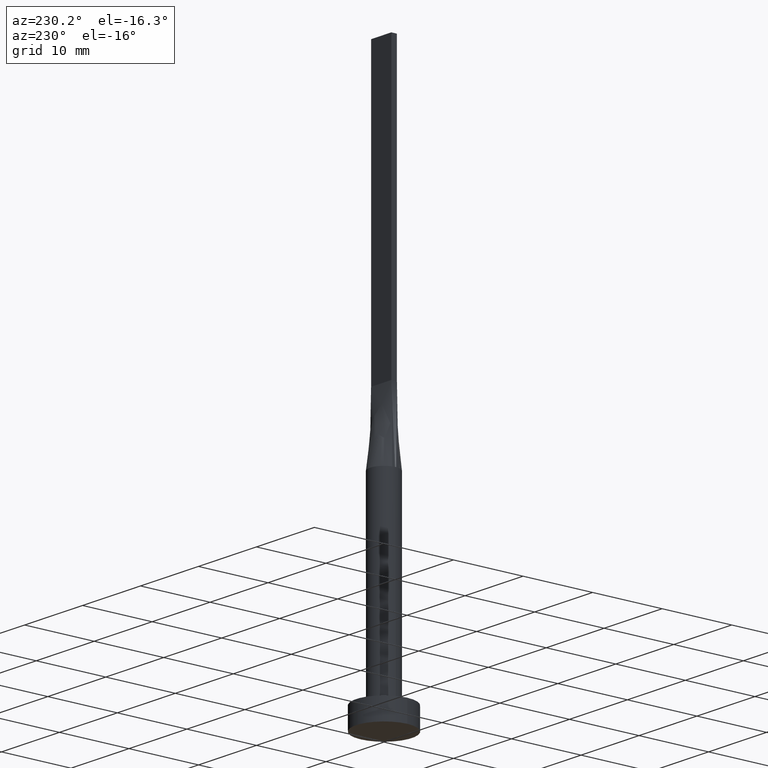
[diagram: clean part render]
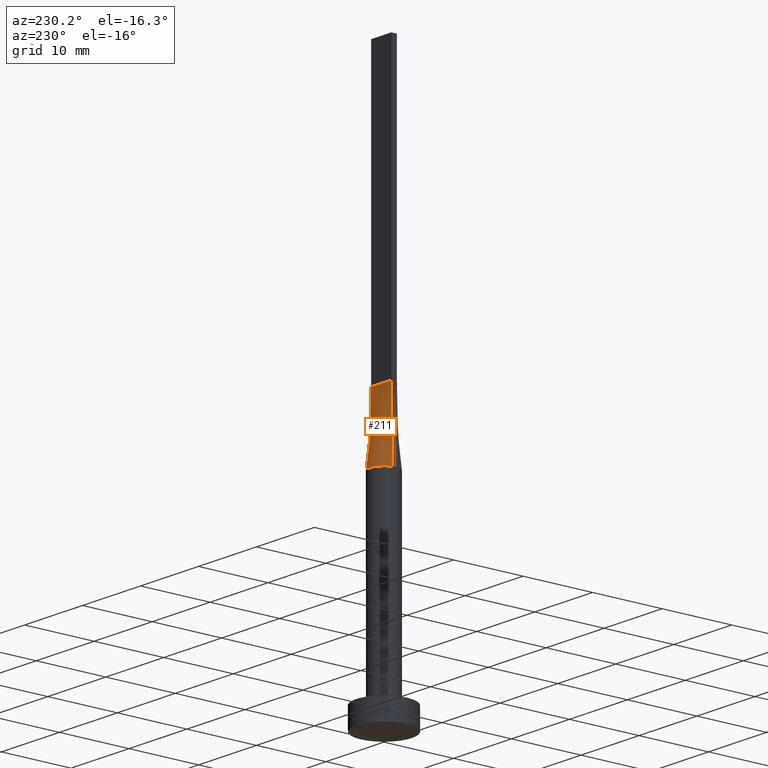
[diagram: same view with one face highlighted and labeled with its STEP entity id]
A machine part, auxiliary view. The second image highlights one B-rep face of the part: STEP entity #211.
In plain terms, the highlighted face is a freeform B-spline surface patch.
Its self-contained STEP definition (entity closure, byte-faithful):
#2 = CARTESIAN_POINT ( 'NONE',  ( -1.949896596863728293, 0.4456908869437610776, 30.00000000000000000 ) ) ;
#19 = VECTOR ( 'NONE', #549, 1000.000000000000114 ) ;
#20 = CARTESIAN_POINT ( 'NONE',  ( 1.002818635501954603, 1.749193953526918088, 30.00000000000000000 ) ) ;
#25 = EDGE_LOOP ( 'NONE', ( #476, #93, #238, #541 ) ) ;
#26 = CARTESIAN_POINT ( 'NONE',  ( 1.913513237607142647, 0.6040411209768705714, 30.00000000000000000 ) ) ;
#35 = CARTESIAN_POINT ( 'NONE',  ( 1.669156890509896352, 1.119033439449084177, 29.99999999999999645 ) ) ;
#45 = CARTESIAN_POINT ( 'NONE',  ( -1.854458107241758746, 0.7741483657718513101, 30.00000000000000000 ) ) ;
#57 = LINE ( 'NONE', #199, #165 ) ;
#62 = CARTESIAN_POINT ( 'NONE',  ( -1.542259513637947999, 1.293837904363075442, 30.00000000000000355 ) ) ;
#64 = CARTESIAN_POINT ( 'NONE',  ( -1.749999999999999778, 0.4000000000000003553, 40.00000000000000000 ) ) ;
#72 = DIRECTION ( 'NONE',  ( 0.01996751149463110026, -0.004564002627344216668, 0.9997902121768992290 ) ) ;
#74 = CARTESIAN_POINT ( 'NONE',  ( -0.5833333333333340365, 0.4000000000000004108, 39.99999999999999289 ) ) ;
#83 = CARTESIAN_POINT ( 'NONE',  ( 1.002818635501954603, 1.749193953526918088, 30.00000000000000000 ) ) ;
#92 = CARTESIAN_POINT ( 'NONE',  ( -1.949896596863728293, 0.4456908869437610776, 30.00000000000000000 ) ) ;
#93 = ORIENTED_EDGE ( 'NONE', *, *, #167, .T. ) ;
#105 = CARTESIAN_POINT ( 'NONE',  ( -0.7291666666666672958, 0.4000000000000004108, 39.99999999999999289 ) ) ;
#113 = CARTESIAN_POINT ( 'NONE',  ( -1.002818635501954381, 1.749193953526918532, 30.00000000000000000 ) ) ;
#116 = CARTESIAN_POINT ( 'NONE',  ( 0.5307032259479425029, 1.945168061822314165, 30.00000000000000000 ) ) ;
#119 = CARTESIAN_POINT ( 'NONE',  ( -0.5307032259479420588, 1.945168061822314609, 30.00000000000000000 ) ) ;
#129 = CARTESIAN_POINT ( 'NONE',  ( 1.209404336647714073, 1.609323485403446830, 30.00000000000001066 ) ) ;
#156 = CARTESIAN_POINT ( 'NONE',  ( 1.949877516600953875, 0.4456865912299994847, 30.00000000000000000 ) ) ;
#162 = CARTESIAN_POINT ( 'NONE',  ( 1.166666666666665630, 0.4000000000000003553, 39.99999999999999289 ) ) ;
#165 = VECTOR ( 'NONE', #368, 1000.000000000000000 ) ;
#166 = CARTESIAN_POINT ( 'NONE',  ( 1.542259513637948443, 1.293837904363074998, 30.00000000000000711 ) ) ;
#167 = EDGE_CURVE ( 'NONE', #423, #525, #463, .T. ) ;
#169 = CARTESIAN_POINT ( 'NONE',  ( -0.2657394870669756437, 1.999999999999999556, 30.00000000000000000 ) ) ;
#173 = CARTESIAN_POINT ( 'NONE',  ( -1.002818635501954381, 1.749193953526918532, 30.00000000000000000 ) ) ;
#177 = CARTESIAN_POINT ( 'NONE',  ( 1.949877516600953875, 0.4456865912299994847, 30.00000000000000000 ) ) ;
#199 = CARTESIAN_POINT ( 'NONE',  ( -1.749999999999999778, 0.4000000000000003553, 40.00000000000000000 ) ) ;
#203 = CARTESIAN_POINT ( 'NONE',  ( 1.209404336647714073, 1.609323485403446830, 30.00000000000001066 ) ) ;
#207 = CARTESIAN_POINT ( 'NONE',  ( -0.1458333333333341753, 0.4000000000000004108, 39.99999999999999289 ) ) ;
#211 = ADVANCED_FACE ( 'NONE', ( #468 ), #300, .T. ) ;
#216 = CARTESIAN_POINT ( 'NONE',  ( -1.542259513637947999, 1.293837904363075442, 30.00000000000000355 ) ) ;
#224 = CARTESIAN_POINT ( 'NONE',  ( -1.458333333333333703, 0.4000000000000004108, 39.99999999999999289 ) ) ;
#230 = B_SPLINE_CURVE_WITH_KNOTS ( 'NONE', 3,
 ( #177, #439, #573, #35, #347, #129, #83, #383, #570, #169, #299, #173, #475, #216, #387, #443, #278, #92 ),
 .UNSPECIFIED., .F., .F.,
 ( 4, 2, 2, 2, 2, 2, 2, 2, 4 ),
 ( 0.000000000000000000, 0.1250000000000000000, 0.2500000000000000000, 0.3750000000000000000, 0.5000000000000000000, 0.6250000000000000000, 0.7500000000000000000, 0.8750000000000000000, 1.000000000000000000 ),
 .UNSPECIFIED. ) ;
#238 = ORIENTED_EDGE ( 'NONE', *, *, #565, .F. ) ;
#242 = CARTESIAN_POINT ( 'NONE',  ( 1.849858506571867123, 0.4228248015021409678, 35.00000000000000000 ) ) ;
#248 = CARTESIAN_POINT ( 'NONE',  ( 1.020833333333332371, 0.4000000000000004108, 39.99999999999999289 ) ) ;
#250 = CARTESIAN_POINT ( 'NONE',  ( -1.849858506571867123, 0.4228248015021412454, 35.00000000000000000 ) ) ;
#252 = CARTESIAN_POINT ( 'NONE',  ( 0.2916666666666656860, 0.4000000000000004108, 39.99999999999999289 ) ) ;
#260 = CARTESIAN_POINT ( 'NONE',  ( -1.913513237607142647, 0.6040411209768712375, 30.00000000000000355 ) ) ;
#278 = CARTESIAN_POINT ( 'NONE',  ( -1.913513237607142647, 0.6040411209768712375, 30.00000000000000355 ) ) ;
#280 = CARTESIAN_POINT ( 'NONE',  ( 1.749999999999999778, 0.4000000000000003553, 40.00000000000000000 ) ) ;
#293 = CARTESIAN_POINT ( 'NONE',  ( 1.949717013143734468, 0.4456496030042822465, 30.00000000000000000 ) ) ;
#297 = CARTESIAN_POINT ( 'NONE',  ( -0.2916666666666674623, 0.4000000000000004108, 39.99999999999999289 ) ) ;
#299 = CARTESIAN_POINT ( 'NONE',  ( -0.5307032259479420588, 1.945168061822314609, 30.00000000000000000 ) ) ;
#300 = B_SPLINE_SURFACE_WITH_KNOTS ( 'NONE', 3, 1, ( 
 ( #293, #422 ),
 ( #26, #564 ),
 ( #520, #338 ),
 ( #505, #162 ),
 ( #166, #248 ),
 ( #203, #415 ),
 ( #20, #335 ),
 ( #116, #252 ),
 ( #381, #514 ),
 ( #340, #207 ),
 ( #119, #297 ),
 ( #113, #74 ),
 ( #458, #105 ),
 ( #62, #371 ),
 ( #526, #346 ),
 ( #45, #224 ),
 ( #260, #306 ),
 ( #341, #308 ) ),
 .UNSPECIFIED., .F., .F., .F.,
 ( 4, 2, 2, 2, 2, 2, 2, 2, 4 ),
 ( 2, 2 ),
 ( 0.000000000000000000, 0.1250000000000000000, 0.2500000000000000000, 0.3750000000000000000, 0.5000000000000000000, 0.6250000000000000000, 0.7500000000000000000, 0.8750000000000000000, 1.000000000000000000 ),
 ( 0.000000000000000000, 1.000000000000000000 ),
 .UNSPECIFIED. ) ;
#306 = CARTESIAN_POINT ( 'NONE',  ( -1.604166666666666741, 0.4000000000000004108, 39.99999999999999289 ) ) ;
#308 = CARTESIAN_POINT ( 'NONE',  ( -1.749999999999999778, 0.4000000000000003553, 40.00000000000000000 ) ) ;
#335 = CARTESIAN_POINT ( 'NONE',  ( 0.5833333333333323711, 0.4000000000000004108, 39.99999999999999289 ) ) ;
#338 = CARTESIAN_POINT ( 'NONE',  ( 1.458333333333332371, 0.4000000000000003553, 39.99999999999999289 ) ) ;
#340 = CARTESIAN_POINT ( 'NONE',  ( -0.2657394870669756437, 1.999999999999999556, 30.00000000000000000 ) ) ;
#341 = CARTESIAN_POINT ( 'NONE',  ( -1.949717013143734468, 0.4456496030042821910, 30.00000000000000000 ) ) ;
#346 = CARTESIAN_POINT ( 'NONE',  ( -1.166666666666666963, 0.4000000000000004108, 39.99999999999999289 ) ) ;
#347 = CARTESIAN_POINT ( 'NONE',  ( 1.542259513637948443, 1.293837904363074998, 30.00000000000000711 ) ) ;
#350 = EDGE_CURVE ( 'NONE', #550, #423, #230, .T. ) ;
#368 = DIRECTION ( 'NONE',  ( -1.000000000000000000, -0.000000000000000000, -0.000000000000000000 ) ) ;
#370 = LINE ( 'NONE', #242, #19 ) ;
#371 = CARTESIAN_POINT ( 'NONE',  ( -1.020833333333333925, 0.4000000000000004108, 39.99999999999999289 ) ) ;
#381 = CARTESIAN_POINT ( 'NONE',  ( 0.2657394870669761988, 1.999999999999999556, 30.00000000000000000 ) ) ;
#383 = CARTESIAN_POINT ( 'NONE',  ( 0.5307032259479425029, 1.945168061822314165, 30.00000000000000000 ) ) ;
#387 = CARTESIAN_POINT ( 'NONE',  ( -1.669156890509896796, 1.119033439449084399, 30.00000000000000000 ) ) ;
#415 = CARTESIAN_POINT ( 'NONE',  ( 0.7291666666666657415, 0.4000000000000004108, 39.99999999999999289 ) ) ;
#422 = CARTESIAN_POINT ( 'NONE',  ( 1.749999999999998890, 0.4000000000000003553, 40.00000000000000000 ) ) ;
#423 = VERTEX_POINT ( 'NONE', #2 ) ;
#439 = CARTESIAN_POINT ( 'NONE',  ( 1.913513237607142647, 0.6040411209768705714, 30.00000000000000000 ) ) ;
#443 = CARTESIAN_POINT ( 'NONE',  ( -1.854458107241758746, 0.7741483657718513101, 30.00000000000000000 ) ) ;
#455 = VERTEX_POINT ( 'NONE', #280 ) ;
#458 = CARTESIAN_POINT ( 'NONE',  ( -1.209404336647713851, 1.609323485403446830, 30.00000000000000355 ) ) ;
#463 = LINE ( 'NONE', #250, #532 ) ;
#468 = FACE_OUTER_BOUND ( 'NONE', #25, .T. ) ;
#469 = EDGE_CURVE ( 'NONE', #550, #455, #370, .T. ) ;
#475 = CARTESIAN_POINT ( 'NONE',  ( -1.209404336647713851, 1.609323485403446830, 30.00000000000000355 ) ) ;
#476 = ORIENTED_EDGE ( 'NONE', *, *, #350, .T. ) ;
#505 = CARTESIAN_POINT ( 'NONE',  ( 1.669156890509896352, 1.119033439449084177, 29.99999999999999645 ) ) ;
#514 = CARTESIAN_POINT ( 'NONE',  ( 0.1458333333333323989, 0.4000000000000004108, 40.00000000000000000 ) ) ;
#520 = CARTESIAN_POINT ( 'NONE',  ( 1.854458107241759190, 0.7741483657718509770, 30.00000000000000355 ) ) ;
#525 = VERTEX_POINT ( 'NONE', #64 ) ;
#526 = CARTESIAN_POINT ( 'NONE',  ( -1.669156890509896796, 1.119033439449084399, 30.00000000000000000 ) ) ;
#532 = VECTOR ( 'NONE', #72, 1000.000000000000114 ) ;
#541 = ORIENTED_EDGE ( 'NONE', *, *, #469, .F. ) ;
#549 = DIRECTION ( 'NONE',  ( -0.01996751149463112454, -0.004564002627344150749, 0.9997902121768992290 ) ) ;
#550 = VERTEX_POINT ( 'NONE', #156 ) ;
#564 = CARTESIAN_POINT ( 'NONE',  ( 1.604166666666665630, 0.4000000000000003553, 39.99999999999999289 ) ) ;
#565 = EDGE_CURVE ( 'NONE', #455, #525, #57, .T. ) ;
#570 = CARTESIAN_POINT ( 'NONE',  ( 0.2657394870669761988, 1.999999999999999556, 30.00000000000000000 ) ) ;
#573 = CARTESIAN_POINT ( 'NONE',  ( 1.854458107241759190, 0.7741483657718509770, 30.00000000000000355 ) ) ;